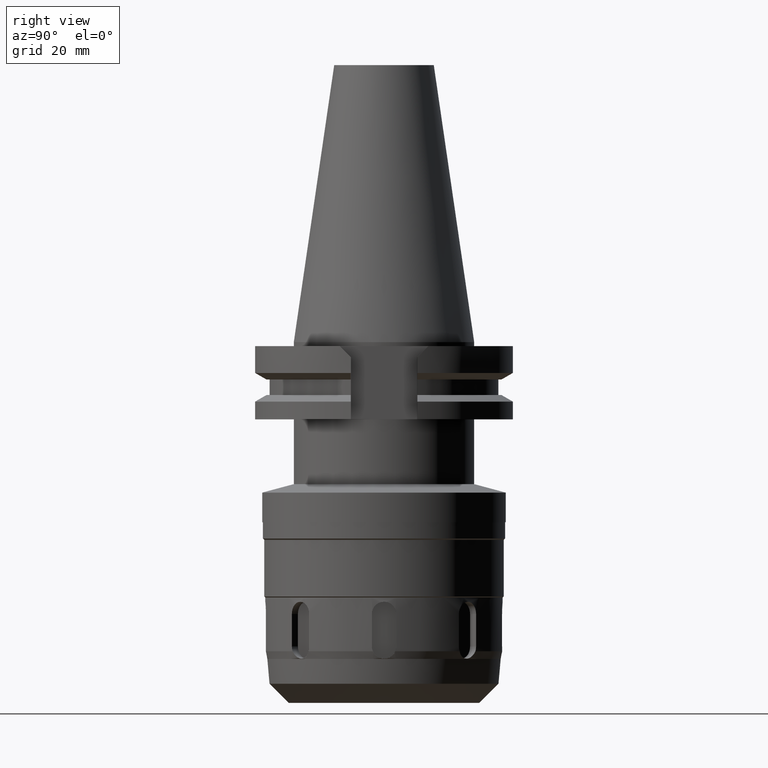
[diagram: clean part render]
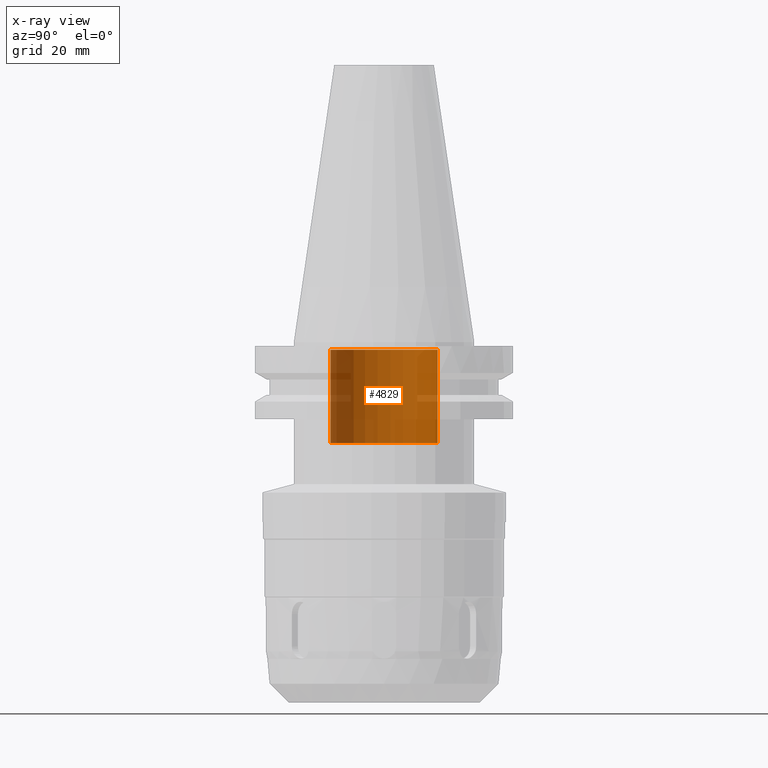
[diagram: x-ray — body ghosted, one internal face saturated and labeled with its STEP entity id]
A machine part, right view, then the same camera in x-ray: the body is ghosted and one INTERNAL B-rep face — a face not visible from any outside direction — is saturated and labeled: STEP entity #4829.
In plain terms, the highlighted cylindrical surface (partial cylindrical patch) has radius 13.2 mm, axis along (0, 0, -1).
Its self-contained STEP definition (entity closure, byte-faithful):
#2442=CARTESIAN_POINT('',(0.E0,0.E0,-2.49E1));
#2443=DIRECTION('',(0.E0,0.E0,-1.E0));
#2444=DIRECTION('',(0.E0,-1.E0,0.E0));
#2445=AXIS2_PLACEMENT_3D('',#2442,#2443,#2444);
#2474=DIRECTION('',(0.E0,0.E0,1.E0));
#2475=VECTOR('',#2474,2.3E1);
#2476=CARTESIAN_POINT('',(0.E0,-1.32E1,-2.49E1));
#2477=LINE('',#2476,#2475);
#2481=DIRECTION('',(0.E0,0.E0,1.E0));
#2482=VECTOR('',#2481,2.3E1);
#2483=CARTESIAN_POINT('',(0.E0,1.32E1,-2.49E1));
#2484=LINE('',#2483,#2482);
#2496=CARTESIAN_POINT('',(0.E0,0.E0,-1.899999999999E0));
#2497=DIRECTION('',(0.E0,0.E0,1.E0));
#2498=DIRECTION('',(0.E0,1.E0,0.E0));
#2499=AXIS2_PLACEMENT_3D('',#2496,#2497,#2498);
#2734=CARTESIAN_POINT('',(0.E0,-1.32E1,-1.899999999999E0));
#2735=CARTESIAN_POINT('',(0.E0,1.32E1,-1.899999999999E0));
#2736=VERTEX_POINT('',#2734);
#2737=VERTEX_POINT('',#2735);
#2738=CARTESIAN_POINT('',(0.E0,1.32E1,-2.49E1));
#2739=VERTEX_POINT('',#2738);
#2740=CARTESIAN_POINT('',(0.E0,-1.32E1,-2.49E1));
#2741=VERTEX_POINT('',#2740);
#4815=CARTESIAN_POINT('',(0.E0,0.E0,7.61075E1));
#4816=DIRECTION('',(0.E0,0.E0,-1.E0));
#4817=DIRECTION('',(0.E0,-1.E0,0.E0));
#4818=AXIS2_PLACEMENT_3D('',#4815,#4816,#4817);
#4819=CYLINDRICAL_SURFACE('',#4818,1.32E1);
#4821=ORIENTED_EDGE('',*,*,#4820,.F.);
#4822=ORIENTED_EDGE('',*,*,#4804,.F.);
#4824=ORIENTED_EDGE('',*,*,#4823,.T.);
#4826=ORIENTED_EDGE('',*,*,#4825,.F.);
#4827=EDGE_LOOP('',(#4821,#4822,#4824,#4826));
#4828=FACE_OUTER_BOUND('',#4827,.F.);
#2446=CIRCLE('',#2445,1.32E1);
#2500=CIRCLE('',#2499,1.32E1);
#4804=EDGE_CURVE('',#2741,#2739,#2446,.T.);
#4820=EDGE_CURVE('',#2739,#2737,#2484,.T.);
#4823=EDGE_CURVE('',#2741,#2736,#2477,.T.);
#4825=EDGE_CURVE('',#2737,#2736,#2500,.T.);
#4829=ADVANCED_FACE('',(#4828),#4819,.F.);